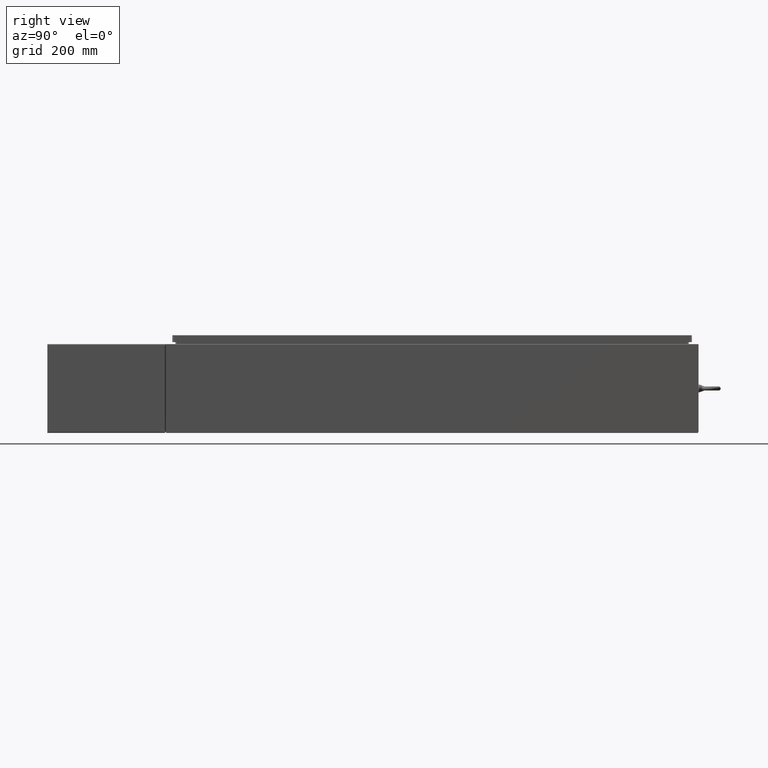
[diagram: clean part render]
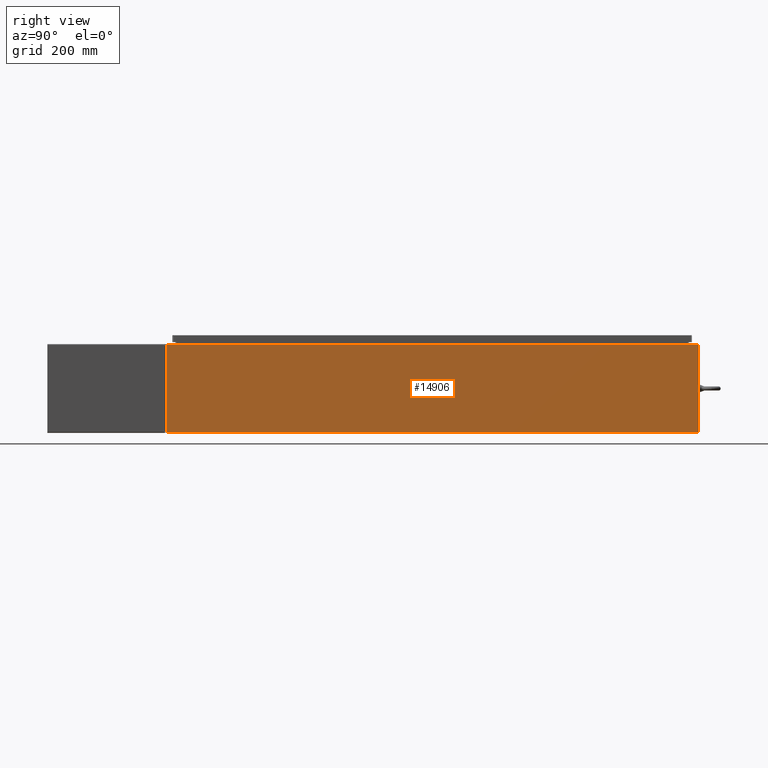
[diagram: same view with one face highlighted and labeled with its STEP entity id]
A machine part, right view. The second image highlights one B-rep face of the part: STEP entity #14906.
In plain terms, the highlighted planar face has unit normal (-1, 0, 0).
Its self-contained STEP definition (entity closure, byte-faithful):
#224 = DIRECTION ( 'NONE',  ( -0.0000000000000000000, -1.000000000000000000, -0.0000000000000000000 ) ) ;
#299 = DIRECTION ( 'NONE',  ( 3.482016343714355500E-015, 0.0000000000000000000, 1.000000000000000000 ) ) ;
#3863 = EDGE_CURVE ( 'NONE', #31418, #11648, #8811, .T. ) ;
#5226 = VERTEX_POINT ( 'NONE', #20101 ) ;
#5347 = EDGE_CURVE ( 'NONE', #5226, #11648, #32529, .T. ) ;
#8811 = LINE ( 'NONE', #10046, #36098 ) ;
#10046 = CARTESIAN_POINT ( 'NONE',  ( 18.00000000000000400, -35.92529999999999300, 0.01299999999999984700 ) ) ;
#10384 = ORIENTED_EDGE ( 'NONE', *, *, #5347, .T. ) ;
#11648 = VERTEX_POINT ( 'NONE', #18268 ) ;
#14906 = ADVANCED_FACE ( 'NONE', ( #34240 ), #43132, .F. ) ;
#18147 = VECTOR ( 'NONE', #299, 39.37007874015748100 ) ;
#18268 = CARTESIAN_POINT ( 'NONE',  ( 18.00000000000000400, -35.92529999999999300, 0.01300000000000094000 ) ) ;
#20101 = CARTESIAN_POINT ( 'NONE',  ( 18.00000000000004600, -35.92529999999999300, 11.83760000000000200 ) ) ;
#27335 = CARTESIAN_POINT ( 'NONE',  ( 18.00000000000004600, 35.92530000000000000, 11.83760000000000200 ) ) ;
#28177 = ORIENTED_EDGE ( 'NONE', *, *, #3863, .F. ) ;
#28602 = VECTOR ( 'NONE', #224, 39.37007874015748100 ) ;
#30950 = CARTESIAN_POINT ( 'NONE',  ( 18.00000000000000400, 35.92530000000000000, 0.01300000000000203200 ) ) ;
#31418 = VERTEX_POINT ( 'NONE', #30950 ) ;
#32529 = LINE ( 'NONE', #57978, #45167 ) ;
#34240 = FACE_OUTER_BOUND ( 'NONE', #55327, .T. ) ;
#36098 = VECTOR ( 'NONE', #65781, 39.37007874015748100 ) ;
#37546 = DIRECTION ( 'NONE',  ( -1.000000000000000000, 0.0000000000000000000, 3.482016343714355100E-015 ) ) ;
#42011 = ORIENTED_EDGE ( 'NONE', *, *, #56842, .T. ) ;
#42962 = LINE ( 'NONE', #48982, #28602 ) ;
#43132 = PLANE ( 'NONE',  #62532 ) ;
#45167 = VECTOR ( 'NONE', #69738, 39.37007874015748100 ) ;
#47016 = LINE ( 'NONE', #65733, #18147 ) ;
#48982 = CARTESIAN_POINT ( 'NONE',  ( 18.00000000000004600, 35.92530000000000000, 11.83760000000000200 ) ) ;
#49131 = EDGE_CURVE ( 'NONE', #50281, #5226, #42962, .T. ) ;
#50281 = VERTEX_POINT ( 'NONE', #27335 ) ;
#55327 = EDGE_LOOP ( 'NONE', ( #59910, #10384, #28177, #42011 ) ) ;
#56842 = EDGE_CURVE ( 'NONE', #31418, #50281, #47016, .T. ) ;
#57726 = DIRECTION ( 'NONE',  ( 3.482016343714355100E-015, 0.0000000000000000000, 1.000000000000000000 ) ) ;
#57978 = CARTESIAN_POINT ( 'NONE',  ( 18.00000000000000400, -35.92529999999999300, -6.293710784286998800E-014 ) ) ;
#58185 = CARTESIAN_POINT ( 'NONE',  ( 18.00000000000000400, 0.0000000000000000000, -6.293710784286998800E-014 ) ) ;
#59910 = ORIENTED_EDGE ( 'NONE', *, *, #49131, .T. ) ;
#62532 = AXIS2_PLACEMENT_3D ( 'NONE', #58185, #37546, #57726 ) ;
#65733 = CARTESIAN_POINT ( 'NONE',  ( 18.00000000000000400, 35.92530000000000000, -6.293710784286998800E-014 ) ) ;
#65781 = DIRECTION ( 'NONE',  ( -1.059124278709682400E-031, -1.000000000000000000, -3.041698183357426800E-017 ) ) ;
#69738 = DIRECTION ( 'NONE',  ( -3.482016343714355500E-015, 0.0000000000000000000, -1.000000000000000000 ) ) ;